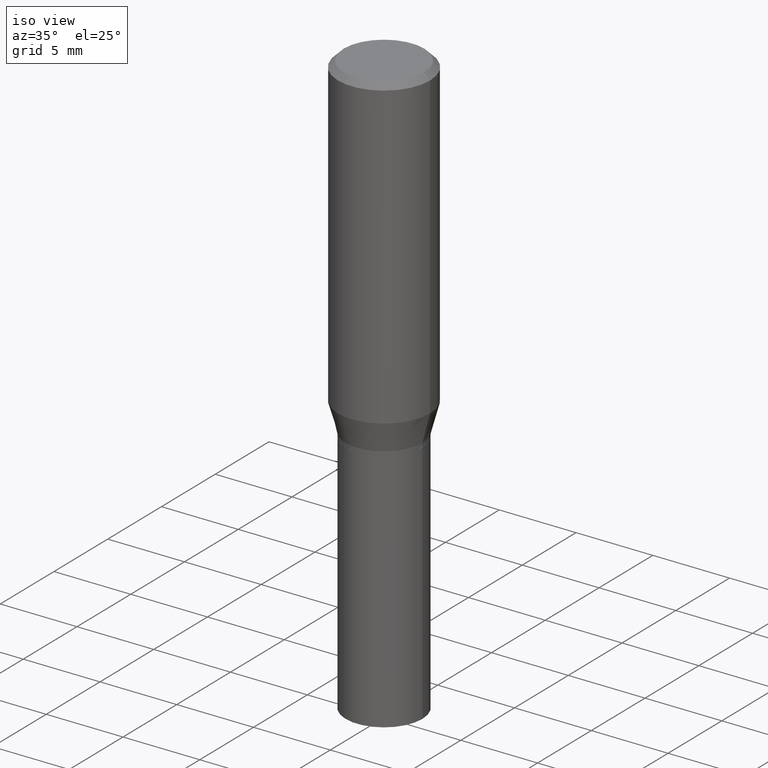
[diagram: clean part render]
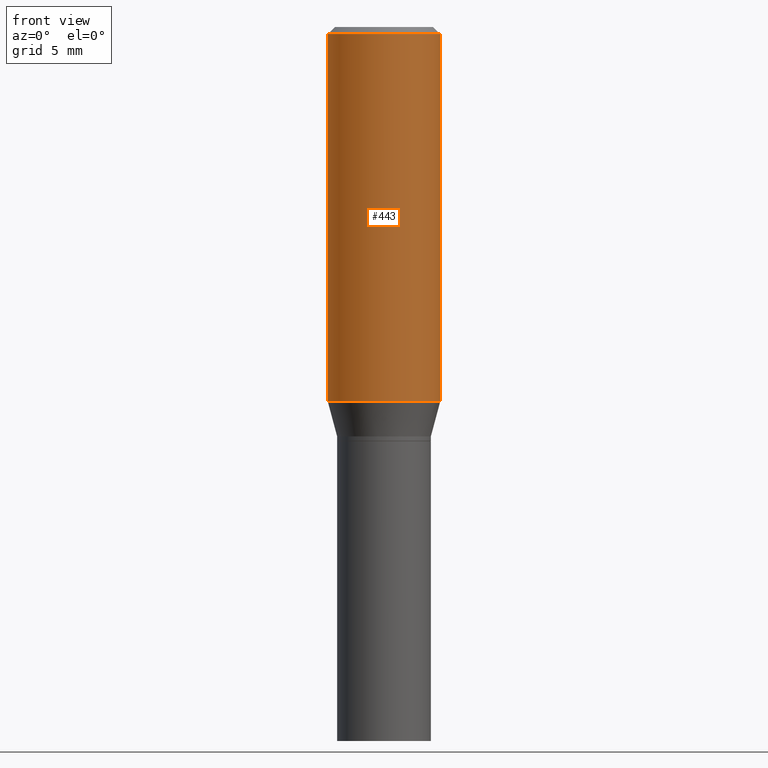
[diagram: tour spotlight — one face highlighted and labeled with its STEP entity id]
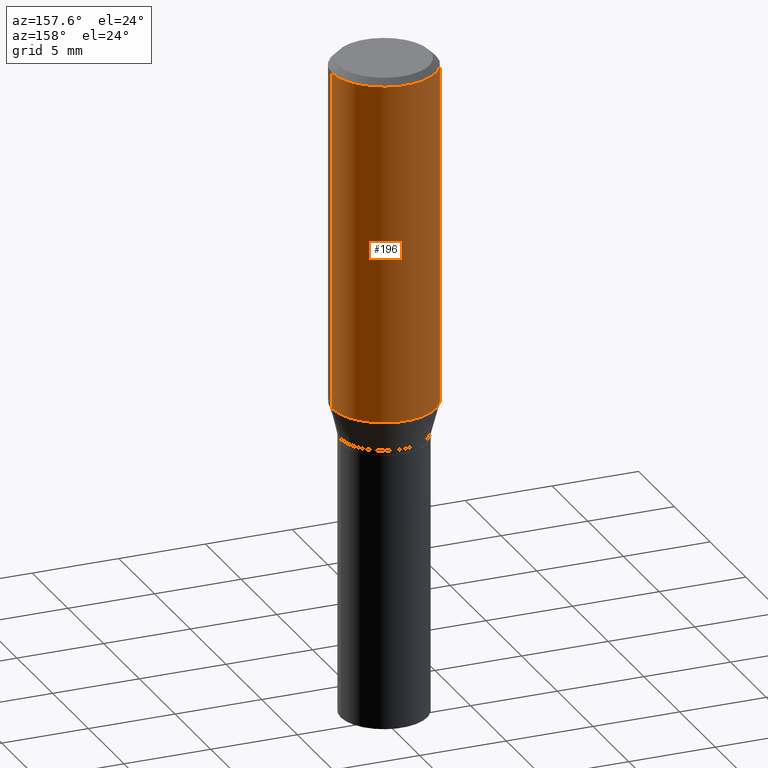
[diagram: tour spotlight — one face highlighted and labeled with its STEP entity id]
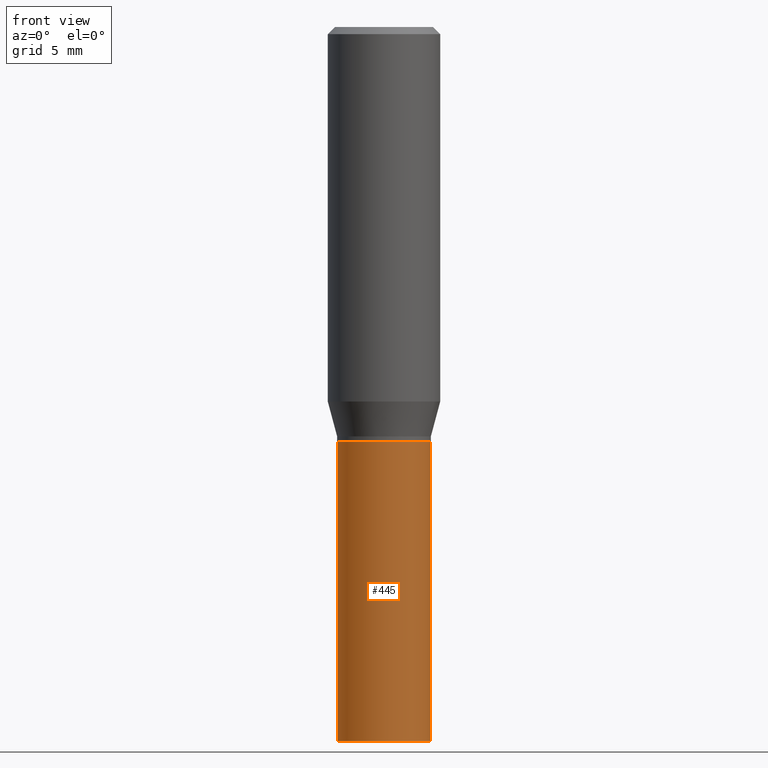
[diagram: tour spotlight — one face highlighted and labeled with its STEP entity id]
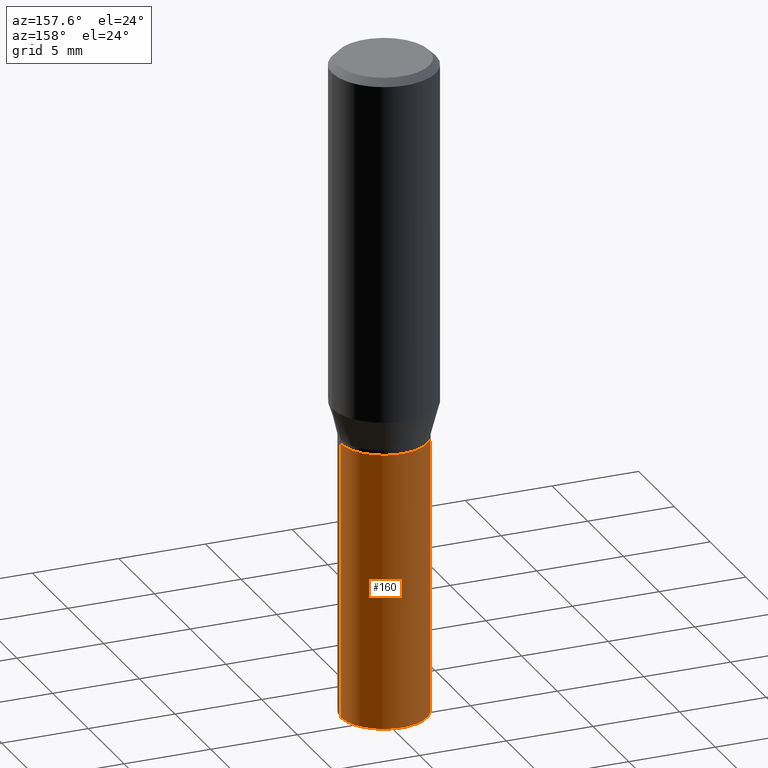
[diagram: tour spotlight — one face highlighted and labeled with its STEP entity id]
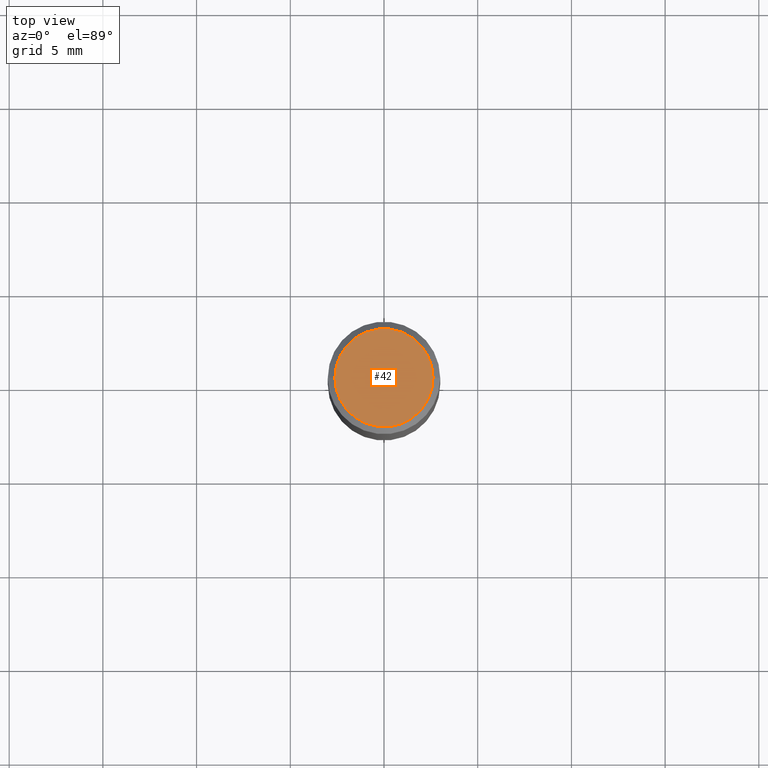
[diagram: tour spotlight — one face highlighted and labeled with its STEP entity id]
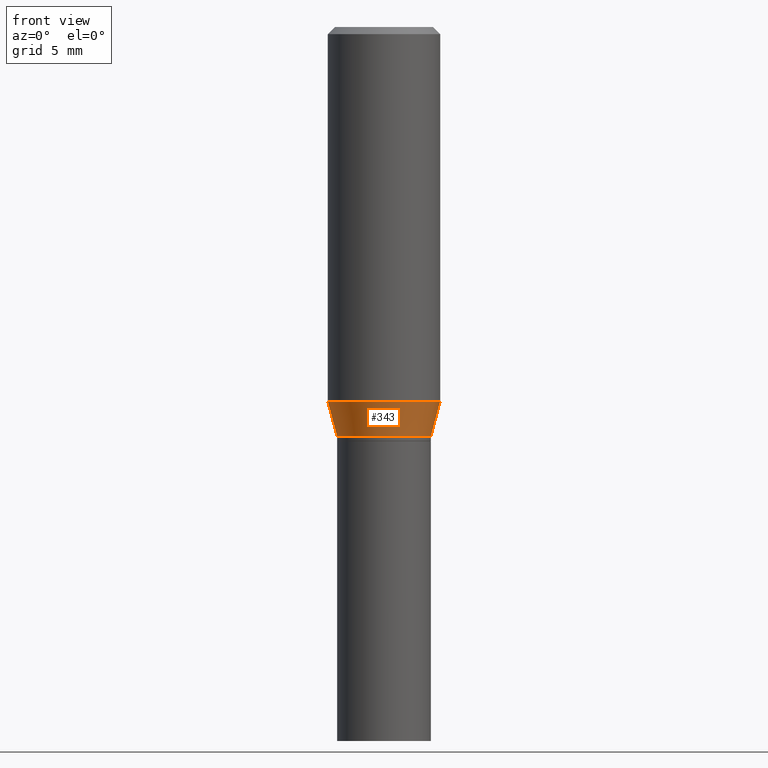
[diagram: tour spotlight — one face highlighted and labeled with its STEP entity id]
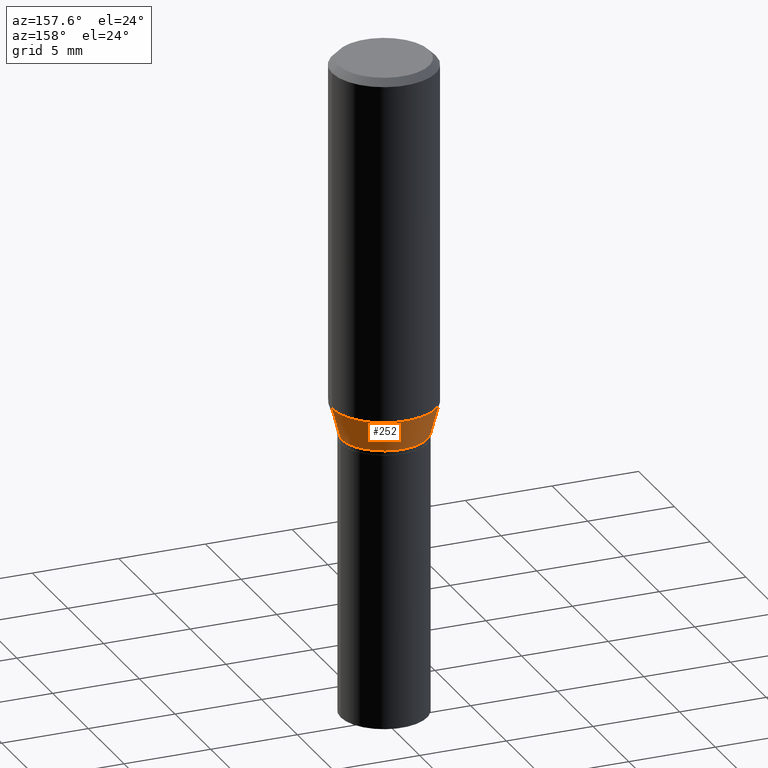
[diagram: tour spotlight — one face highlighted and labeled with its STEP entity id]
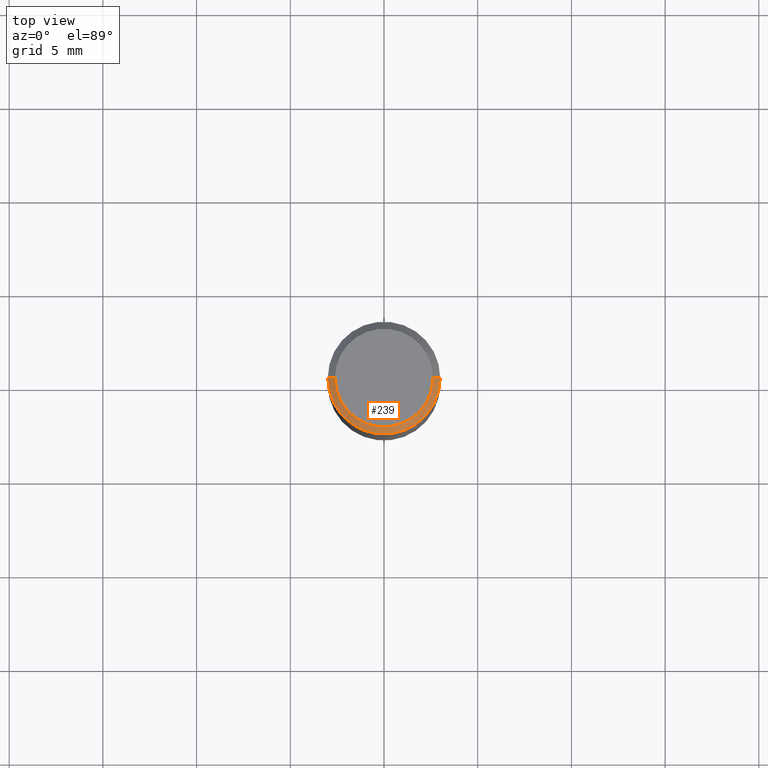
[diagram: tour spotlight — one face highlighted and labeled with its STEP entity id]
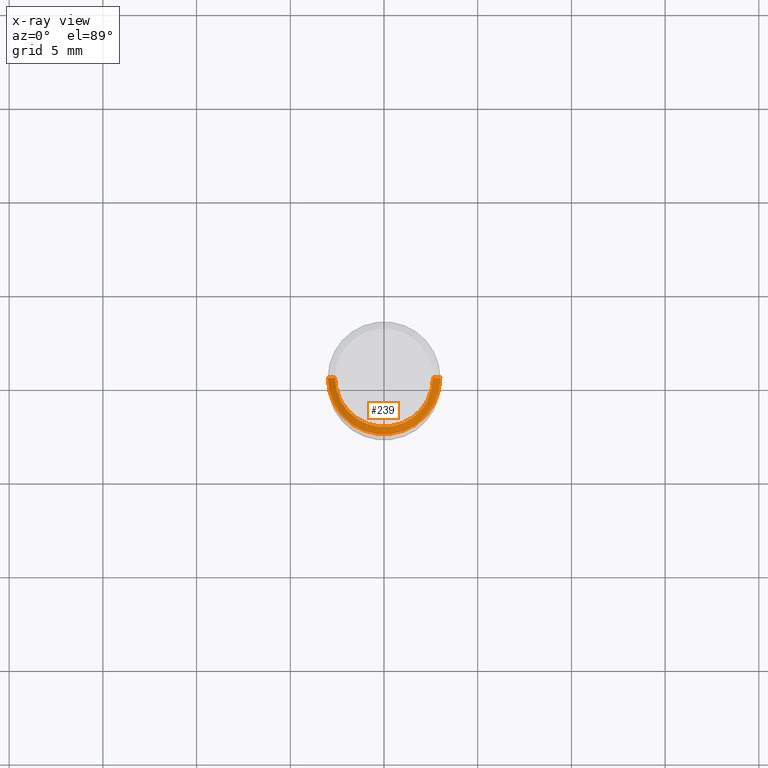
[diagram: x-ray of the same camera — body ghosted, this tour face saturated]
A machine part: a face-by-face anatomy tour. The part has 16 B-rep faces; the first image is the clean iso view, then the 8 largest visible faces are spotlighted one at a time (largest first), each with its STEP entity span.

Face 1 — front view, entity #443. In plain terms, the highlighted cylindrical surface (partial cylindrical patch) has radius 2.9997 mm, axis along (-0, 0, 1).
Definition (entity closure, byte-faithful):
#48 = DIRECTION ( 'NONE',  ( -2.445468806185136877E-29, 3.491481338843145188E-15, 1.000000000000000000 ) ) ;
#53 = EDGE_LOOP ( 'NONE', ( #107, #254, #296, #290 ) ) ;
#81 = CIRCLE ( 'NONE', #465, 0.1180999999999999966 ) ;
#89 = LINE ( 'NONE', #371, #230 ) ;
#99 = VERTEX_POINT ( 'NONE', #184 ) ;
#107 = ORIENTED_EDGE ( 'NONE', *, *, #435, .F. ) ;
#113 = DIRECTION ( 'NONE',  ( -2.445468806185136597E-29, 3.491481338843145583E-15, 1.000000000000000000 ) ) ;
#115 = VERTEX_POINT ( 'NONE', #266 ) ;
#124 = CARTESIAN_POINT ( 'NONE',  ( 0.1180999999999999966, -8.770601123173952432E-16, -0.01499999999999999944 ) ) ;
#131 = FACE_OUTER_BOUND ( 'NONE', #53, .T. ) ;
#171 = VECTOR ( 'NONE', #403, 39.37007874015748143 ) ;
#172 = CARTESIAN_POINT ( 'NONE',  ( 0.000000000000000000, 0.000000000000000000, 0.000000000000000000 ) ) ;
#175 = EDGE_CURVE ( 'NONE', #451, #425, #208, .T. ) ;
#184 = CARTESIAN_POINT ( 'NONE',  ( 0.1180999999999999966, -3.571663911781501372E-15, -0.7867652016312725038 ) ) ;
#193 = EDGE_CURVE ( 'NONE', #115, #99, #81, .T. ) ;
#208 = CIRCLE ( 'NONE', #395, 0.1180999999999999966 ) ;
#230 = VECTOR ( 'NONE', #48, 39.37007874015748143 ) ;
#243 = LINE ( 'NONE', #377, #171 ) ;
#254 = ORIENTED_EDGE ( 'NONE', *, *, #193, .T. ) ;
#255 = DIRECTION ( 'NONE',  ( 1.000000000000000000, -6.982962677686266711E-15, 0.000000000000000000 ) ) ;
#266 = CARTESIAN_POINT ( 'NONE',  ( -0.1180999999999999966, -1.907825048614074518E-15, -0.7867652016312725038 ) ) ;
#290 = ORIENTED_EDGE ( 'NONE', *, *, #175, .F. ) ;
#291 = DIRECTION ( 'NONE',  ( 1.000000000000000000, -6.982962677686266711E-15, 4.876176775795936353E-29 ) ) ;
#296 = ORIENTED_EDGE ( 'NONE', *, *, #439, .T. ) ;
#313 = CARTESIAN_POINT ( 'NONE',  ( -0.1180999999999999966, -5.605231488820216014E-16, -0.01499999999999999944 ) ) ;
#329 = DIRECTION ( 'NONE',  ( -2.445468806185136597E-29, 3.491481338843145583E-15, 1.000000000000000000 ) ) ;
#331 = DIRECTION ( 'NONE',  ( 1.000000000000000000, -6.982962677686269077E-15, 0.000000000000000000 ) ) ;
#339 = CYLINDRICAL_SURFACE ( 'NONE', #340, 0.1180999999999999966 ) ;
#340 = AXIS2_PLACEMENT_3D ( 'NONE', #172, #329, #291 ) ;
#353 = CARTESIAN_POINT ( 'NONE',  ( 3.668203209277705088E-31, -5.237222008264718399E-17, -0.01499999999999999944 ) ) ;
#371 = CARTESIAN_POINT ( 'NONE',  ( 0.1180999999999999966, -8.246878922347480654E-16, 5.758764772215000440E-30 ) ) ;
#377 = CARTESIAN_POINT ( 'NONE',  ( -0.1180999999999999966, 8.391509709326782957E-16, -5.809262341591043784E-30 ) ) ;
#395 = AXIS2_PLACEMENT_3D ( 'NONE', #353, #113, #255 ) ;
#403 = DIRECTION ( 'NONE',  ( -2.445468806185136877E-29, 3.491481338843145188E-15, 1.000000000000000000 ) ) ;
#425 = VERTEX_POINT ( 'NONE', #124 ) ;
#429 = DIRECTION ( 'NONE',  ( -2.445468806185136597E-29, 3.491481338843145583E-15, 1.000000000000000000 ) ) ;
#434 = CARTESIAN_POINT ( 'NONE',  ( 1.924009758381236534E-29, -2.746976019546752715E-15, -0.7867652016312725038 ) ) ;
#435 = EDGE_CURVE ( 'NONE', #115, #451, #243, .T. ) ;
#439 = EDGE_CURVE ( 'NONE', #99, #425, #89, .T. ) ;
#443 = ADVANCED_FACE ( 'NONE', ( #131 ), #339, .T. ) ;
#451 = VERTEX_POINT ( 'NONE', #313 ) ;
#465 = AXIS2_PLACEMENT_3D ( 'NONE', #434, #429, #331 ) ;

Face 2 — auxiliary view, entity #196. In plain terms, the highlighted cylindrical surface (partial cylindrical patch) has radius 2.9997 mm, axis along (-0, 0, 1).
Definition (entity closure, byte-faithful):
#11 = EDGE_CURVE ( 'NONE', #99, #115, #21, .T. ) ;
#18 = ORIENTED_EDGE ( 'NONE', *, *, #435, .T. ) ;
#21 = CIRCLE ( 'NONE', #330, 0.1180999999999999966 ) ;
#48 = DIRECTION ( 'NONE',  ( -2.445468806185136877E-29, 3.491481338843145188E-15, 1.000000000000000000 ) ) ;
#49 = ORIENTED_EDGE ( 'NONE', *, *, #11, .T. ) ;
#60 = DIRECTION ( 'NONE',  ( -2.445468806185136597E-29, 3.491481338843145583E-15, 1.000000000000000000 ) ) ;
#83 = DIRECTION ( 'NONE',  ( 1.000000000000000000, -6.982962677686266711E-15, 0.000000000000000000 ) ) ;
#88 = FACE_OUTER_BOUND ( 'NONE', #293, .T. ) ;
#89 = LINE ( 'NONE', #371, #230 ) ;
#97 = DIRECTION ( 'NONE',  ( 1.000000000000000000, -6.982962677686269077E-15, 0.000000000000000000 ) ) ;
#99 = VERTEX_POINT ( 'NONE', #184 ) ;
#115 = VERTEX_POINT ( 'NONE', #266 ) ;
#122 = AXIS2_PLACEMENT_3D ( 'NONE', #135, #262, #83 ) ;
#124 = CARTESIAN_POINT ( 'NONE',  ( 0.1180999999999999966, -8.770601123173952432E-16, -0.01499999999999999944 ) ) ;
#130 = DIRECTION ( 'NONE',  ( -2.445468806185136597E-29, 3.491481338843145583E-15, 1.000000000000000000 ) ) ;
#133 = DIRECTION ( 'NONE',  ( 1.000000000000000000, -6.982962677686266711E-15, 4.876176775795936353E-29 ) ) ;
#135 = CARTESIAN_POINT ( 'NONE',  ( 3.668203209277705088E-31, -5.237222008264718399E-17, -0.01499999999999999944 ) ) ;
#151 = CIRCLE ( 'NONE', #122, 0.1180999999999999966 ) ;
#171 = VECTOR ( 'NONE', #403, 39.37007874015748143 ) ;
#184 = CARTESIAN_POINT ( 'NONE',  ( 0.1180999999999999966, -3.571663911781501372E-15, -0.7867652016312725038 ) ) ;
#196 = ADVANCED_FACE ( 'NONE', ( #88 ), #304, .T. ) ;
#230 = VECTOR ( 'NONE', #48, 39.37007874015748143 ) ;
#243 = LINE ( 'NONE', #377, #171 ) ;
#248 = ORIENTED_EDGE ( 'NONE', *, *, #439, .F. ) ;
#258 = ORIENTED_EDGE ( 'NONE', *, *, #408, .F. ) ;
#262 = DIRECTION ( 'NONE',  ( -2.445468806185136597E-29, 3.491481338843145583E-15, 1.000000000000000000 ) ) ;
#266 = CARTESIAN_POINT ( 'NONE',  ( -0.1180999999999999966, -1.907825048614074518E-15, -0.7867652016312725038 ) ) ;
#293 = EDGE_LOOP ( 'NONE', ( #49, #18, #258, #248 ) ) ;
#304 = CYLINDRICAL_SURFACE ( 'NONE', #400, 0.1180999999999999966 ) ;
#313 = CARTESIAN_POINT ( 'NONE',  ( -0.1180999999999999966, -5.605231488820216014E-16, -0.01499999999999999944 ) ) ;
#330 = AXIS2_PLACEMENT_3D ( 'NONE', #416, #60, #97 ) ;
#371 = CARTESIAN_POINT ( 'NONE',  ( 0.1180999999999999966, -8.246878922347480654E-16, 5.758764772215000440E-30 ) ) ;
#377 = CARTESIAN_POINT ( 'NONE',  ( -0.1180999999999999966, 8.391509709326782957E-16, -5.809262341591043784E-30 ) ) ;
#400 = AXIS2_PLACEMENT_3D ( 'NONE', #409, #130, #133 ) ;
#403 = DIRECTION ( 'NONE',  ( -2.445468806185136877E-29, 3.491481338843145188E-15, 1.000000000000000000 ) ) ;
#408 = EDGE_CURVE ( 'NONE', #425, #451, #151, .T. ) ;
#409 = CARTESIAN_POINT ( 'NONE',  ( 0.000000000000000000, 0.000000000000000000, 0.000000000000000000 ) ) ;
#416 = CARTESIAN_POINT ( 'NONE',  ( 1.924009758381236534E-29, -2.746976019546752715E-15, -0.7867652016312725038 ) ) ;
#425 = VERTEX_POINT ( 'NONE', #124 ) ;
#435 = EDGE_CURVE ( 'NONE', #115, #451, #243, .T. ) ;
#439 = EDGE_CURVE ( 'NONE', #99, #425, #89, .T. ) ;
#451 = VERTEX_POINT ( 'NONE', #313 ) ;

Face 3 — front view, entity #445. In plain terms, the highlighted cylindrical surface (partial cylindrical patch) has radius 2.5006 mm, axis along (-0, 0, 1).
Definition (entity closure, byte-faithful):
#10 = DIRECTION ( 'NONE',  ( 1.000000000000000000, -6.982962677686265922E-15, 0.000000000000000000 ) ) ;
#13 = CARTESIAN_POINT ( 'NONE',  ( 0.09844999999999999585, -5.924694683882931526E-15, -1.500000000000000222 ) ) ;
#28 = ORIENTED_EDGE ( 'NONE', *, *, #162, .F. ) ;
#66 = CARTESIAN_POINT ( 'NONE',  ( 0.09844999999999999585, -3.725410588545634555E-15, -0.8701000000000000956 ) ) ;
#73 = AXIS2_PLACEMENT_3D ( 'NONE', #170, #411, #442 ) ;
#87 = DIRECTION ( 'NONE',  ( -2.445468806185136597E-29, 3.491481338843145583E-15, 1.000000000000000000 ) ) ;
#91 = AXIS2_PLACEMENT_3D ( 'NONE', #157, #87, #10 ) ;
#94 = EDGE_LOOP ( 'NONE', ( #308, #166, #241, #28 ) ) ;
#100 = VECTOR ( 'NONE', #440, 39.37007874015748143 ) ;
#108 = AXIS2_PLACEMENT_3D ( 'NONE', #453, #150, #176 ) ;
#148 = VERTEX_POINT ( 'NONE', #389 ) ;
#150 = DIRECTION ( 'NONE',  ( -2.445468806185136597E-29, 3.491481338843145583E-15, 1.000000000000000000 ) ) ;
#157 = CARTESIAN_POINT ( 'NONE',  ( 2.127802408261687534E-29, -3.037937912927421601E-15, -0.8701000000000000956 ) ) ;
#162 = EDGE_CURVE ( 'NONE', #244, #378, #405, .T. ) ;
#166 = ORIENTED_EDGE ( 'NONE', *, *, #276, .T. ) ;
#167 = CARTESIAN_POINT ( 'NONE',  ( -0.09844999999999999585, -3.438050637240251581E-15, -0.8701000000000000956 ) ) ;
#170 = CARTESIAN_POINT ( 'NONE',  ( 3.668203209277704895E-29, -5.237222008264718177E-15, -1.500000000000000222 ) ) ;
#176 = DIRECTION ( 'NONE',  ( 1.000000000000000000, -6.982962677686266711E-15, 4.876176775795936353E-29 ) ) ;
#178 = VECTOR ( 'NONE', #357, 39.37007874015748143 ) ;
#190 = EDGE_CURVE ( 'NONE', #268, #378, #464, .T. ) ;
#222 = CIRCLE ( 'NONE', #73, 0.09844999999999999585 ) ;
#223 = CARTESIAN_POINT ( 'NONE',  ( 0.09844999999999999585, -6.874726756182129545E-16, 4.800596035771099214E-30 ) ) ;
#241 = ORIENTED_EDGE ( 'NONE', *, *, #190, .T. ) ;
#244 = VERTEX_POINT ( 'NONE', #167 ) ;
#260 = EDGE_CURVE ( 'NONE', #148, #244, #335, .T. ) ;
#268 = VERTEX_POINT ( 'NONE', #13 ) ;
#276 = EDGE_CURVE ( 'NONE', #148, #268, #222, .T. ) ;
#307 = CARTESIAN_POINT ( 'NONE',  ( -0.09844999999999999585, 6.995293233558186035E-16, -4.842691596355954042E-30 ) ) ;
#308 = ORIENTED_EDGE ( 'NONE', *, *, #260, .F. ) ;
#335 = LINE ( 'NONE', #307, #100 ) ;
#341 = FACE_OUTER_BOUND ( 'NONE', #94, .T. ) ;
#357 = DIRECTION ( 'NONE',  ( -2.445468806185136877E-29, 3.491481338843145188E-15, 1.000000000000000000 ) ) ;
#378 = VERTEX_POINT ( 'NONE', #66 ) ;
#389 = CARTESIAN_POINT ( 'NONE',  ( -0.09844999999999999585, -3.438050637240251581E-15, -1.500000000000000222 ) ) ;
#405 = CIRCLE ( 'NONE', #91, 0.09844999999999999585 ) ;
#411 = DIRECTION ( 'NONE',  ( -2.445468806185136597E-29, 3.491481338843145583E-15, 1.000000000000000000 ) ) ;
#421 = CYLINDRICAL_SURFACE ( 'NONE', #108, 0.09844999999999999585 ) ;
#440 = DIRECTION ( 'NONE',  ( -2.445468806185136877E-29, 3.491481338843145188E-15, 1.000000000000000000 ) ) ;
#442 = DIRECTION ( 'NONE',  ( 1.000000000000000000, -6.982962677686265922E-15, 0.000000000000000000 ) ) ;
#445 = ADVANCED_FACE ( 'NONE', ( #341 ), #421, .T. ) ;
#453 = CARTESIAN_POINT ( 'NONE',  ( 0.000000000000000000, 0.000000000000000000, 0.000000000000000000 ) ) ;
#464 = LINE ( 'NONE', #223, #178 ) ;

Face 4 — auxiliary view, entity #160. In plain terms, the highlighted cylindrical surface (partial cylindrical patch) has radius 2.5006 mm, axis along (-0, 0, 1).
Definition (entity closure, byte-faithful):
#13 = CARTESIAN_POINT ( 'NONE',  ( 0.09844999999999999585, -5.924694683882931526E-15, -1.500000000000000222 ) ) ;
#34 = DIRECTION ( 'NONE',  ( 1.000000000000000000, -6.982962677686266711E-15, 4.876176775795936353E-29 ) ) ;
#43 = DIRECTION ( 'NONE',  ( 1.000000000000000000, -6.982962677686265922E-15, 0.000000000000000000 ) ) ;
#56 = AXIS2_PLACEMENT_3D ( 'NONE', #380, #132, #311 ) ;
#66 = CARTESIAN_POINT ( 'NONE',  ( 0.09844999999999999585, -3.725410588545634555E-15, -0.8701000000000000956 ) ) ;
#68 = ORIENTED_EDGE ( 'NONE', *, *, #190, .F. ) ;
#70 = EDGE_LOOP ( 'NONE', ( #438, #141, #349, #68 ) ) ;
#100 = VECTOR ( 'NONE', #440, 39.37007874015748143 ) ;
#112 = CARTESIAN_POINT ( 'NONE',  ( 0.000000000000000000, 0.000000000000000000, 0.000000000000000000 ) ) ;
#132 = DIRECTION ( 'NONE',  ( -2.445468806185136597E-29, 3.491481338843145583E-15, 1.000000000000000000 ) ) ;
#141 = ORIENTED_EDGE ( 'NONE', *, *, #260, .T. ) ;
#148 = VERTEX_POINT ( 'NONE', #389 ) ;
#160 = ADVANCED_FACE ( 'NONE', ( #460 ), #297, .T. ) ;
#163 = CIRCLE ( 'NONE', #271, 0.09844999999999999585 ) ;
#167 = CARTESIAN_POINT ( 'NONE',  ( -0.09844999999999999585, -3.438050637240251581E-15, -0.8701000000000000956 ) ) ;
#178 = VECTOR ( 'NONE', #357, 39.37007874015748143 ) ;
#190 = EDGE_CURVE ( 'NONE', #268, #378, #464, .T. ) ;
#223 = CARTESIAN_POINT ( 'NONE',  ( 0.09844999999999999585, -6.874726756182129545E-16, 4.800596035771099214E-30 ) ) ;
#224 = EDGE_CURVE ( 'NONE', #268, #148, #163, .T. ) ;
#231 = CARTESIAN_POINT ( 'NONE',  ( 3.668203209277704895E-29, -5.237222008264718177E-15, -1.500000000000000222 ) ) ;
#232 = EDGE_CURVE ( 'NONE', #378, #244, #414, .T. ) ;
#244 = VERTEX_POINT ( 'NONE', #167 ) ;
#260 = EDGE_CURVE ( 'NONE', #148, #244, #335, .T. ) ;
#268 = VERTEX_POINT ( 'NONE', #13 ) ;
#271 = AXIS2_PLACEMENT_3D ( 'NONE', #231, #363, #43 ) ;
#280 = AXIS2_PLACEMENT_3D ( 'NONE', #112, #391, #34 ) ;
#297 = CYLINDRICAL_SURFACE ( 'NONE', #280, 0.09844999999999999585 ) ;
#307 = CARTESIAN_POINT ( 'NONE',  ( -0.09844999999999999585, 6.995293233558186035E-16, -4.842691596355954042E-30 ) ) ;
#311 = DIRECTION ( 'NONE',  ( 1.000000000000000000, -6.982962677686265922E-15, 0.000000000000000000 ) ) ;
#335 = LINE ( 'NONE', #307, #100 ) ;
#349 = ORIENTED_EDGE ( 'NONE', *, *, #232, .F. ) ;
#357 = DIRECTION ( 'NONE',  ( -2.445468806185136877E-29, 3.491481338843145188E-15, 1.000000000000000000 ) ) ;
#363 = DIRECTION ( 'NONE',  ( -2.445468806185136597E-29, 3.491481338843145583E-15, 1.000000000000000000 ) ) ;
#378 = VERTEX_POINT ( 'NONE', #66 ) ;
#380 = CARTESIAN_POINT ( 'NONE',  ( 2.127802408261687534E-29, -3.037937912927421601E-15, -0.8701000000000000956 ) ) ;
#389 = CARTESIAN_POINT ( 'NONE',  ( -0.09844999999999999585, -3.438050637240251581E-15, -1.500000000000000222 ) ) ;
#391 = DIRECTION ( 'NONE',  ( -2.445468806185136597E-29, 3.491481338843145583E-15, 1.000000000000000000 ) ) ;
#414 = CIRCLE ( 'NONE', #56, 0.09844999999999999585 ) ;
#438 = ORIENTED_EDGE ( 'NONE', *, *, #224, .T. ) ;
#440 = DIRECTION ( 'NONE',  ( -2.445468806185136877E-29, 3.491481338843145188E-15, 1.000000000000000000 ) ) ;
#460 = FACE_OUTER_BOUND ( 'NONE', #70, .T. ) ;
#464 = LINE ( 'NONE', #223, #178 ) ;

Face 5 — top view, entity #42. In plain terms, the highlighted planar face has unit normal (0, -0, -1).
Definition (entity closure, byte-faithful):
#3 = DIRECTION ( 'NONE',  ( -2.445468806185136597E-29, 3.491481338843145583E-15, 1.000000000000000000 ) ) ;
#26 = EDGE_LOOP ( 'NONE', ( #179, #144 ) ) ;
#39 = CIRCLE ( 'NONE', #117, 0.1031000000000000111 ) ;
#42 = ADVANCED_FACE ( 'NONE', ( #142 ), #136, .F. ) ;
#77 = CARTESIAN_POINT ( 'NONE',  ( -0.1031000000000000111, 7.461295621107772493E-16, -1.900413116462341961E-16 ) ) ;
#98 = VERTEX_POINT ( 'NONE', #149 ) ;
#103 = DIRECTION ( 'NONE',  ( 2.438088387897960049E-29, -3.491481338843145188E-15, -1.000000000000000000 ) ) ;
#114 = EDGE_CURVE ( 'NONE', #147, #98, #39, .T. ) ;
#117 = AXIS2_PLACEMENT_3D ( 'NONE', #152, #3, #437 ) ;
#136 = PLANE ( 'NONE',  #191 ) ;
#142 = FACE_OUTER_BOUND ( 'NONE', #26, .T. ) ;
#144 = ORIENTED_EDGE ( 'NONE', *, *, #426, .T. ) ;
#147 = VERTEX_POINT ( 'NONE', #77 ) ;
#149 = CARTESIAN_POINT ( 'NONE',  ( 0.1031000000000000111, -7.849571885948552706E-16, -1.900413116462238423E-16 ) ) ;
#152 = CARTESIAN_POINT ( 'NONE',  ( 4.647400995173613138E-45, -6.635256932220833331E-31, -1.900413116462290932E-16 ) ) ;
#179 = ORIENTED_EDGE ( 'NONE', *, *, #114, .T. ) ;
#191 = AXIS2_PLACEMENT_3D ( 'NONE', #285, #103, #247 ) ;
#192 = DIRECTION ( 'NONE',  ( 1.000000000000000000, -6.982962677686265922E-15, 4.883331232093008327E-29 ) ) ;
#238 = AXIS2_PLACEMENT_3D ( 'NONE', #366, #410, #192 ) ;
#247 = DIRECTION ( 'NONE',  ( -1.000000000000000000, 6.982962677686265922E-15, -4.876176775795935793E-29 ) ) ;
#285 = CARTESIAN_POINT ( 'NONE',  ( 7.199434520694541042E-16, 0.1031000000000000111, -4.549923818578428559E-16 ) ) ;
#366 = CARTESIAN_POINT ( 'NONE',  ( 4.647400995173613138E-45, -6.635256932220833331E-31, -1.900413116462290932E-16 ) ) ;
#410 = DIRECTION ( 'NONE',  ( -2.445468806185136597E-29, 3.491481338843145583E-15, 1.000000000000000000 ) ) ;
#424 = CIRCLE ( 'NONE', #238, 0.1031000000000000111 ) ;
#426 = EDGE_CURVE ( 'NONE', #98, #147, #424, .T. ) ;
#437 = DIRECTION ( 'NONE',  ( 1.000000000000000000, -6.982962677686265922E-15, 4.883331232093008327E-29 ) ) ;

Face 6 — front view, entity #343. In plain terms, the highlighted conical surface has half-angle 15 deg.
Definition (entity closure, byte-faithful):
#5 = DIRECTION ( 'NONE',  ( -0.2588190451025215166, 5.211531920934551042E-15, 0.9659258262890679791 ) ) ;
#24 = EDGE_CURVE ( 'NONE', #336, #99, #52, .T. ) ;
#41 = DIRECTION ( 'NONE',  ( -2.445468806185136597E-29, 3.491481338843145583E-15, 1.000000000000000000 ) ) ;
#45 = VECTOR ( 'NONE', #177, 39.37007874015748143 ) ;
#51 = EDGE_LOOP ( 'NONE', ( #253, #104, #449, #197 ) ) ;
#52 = LINE ( 'NONE', #342, #45 ) ;
#65 = VECTOR ( 'NONE', #5, 39.37007874015748143 ) ;
#81 = CIRCLE ( 'NONE', #465, 0.1180999999999999966 ) ;
#82 = AXIS2_PLACEMENT_3D ( 'NONE', #450, #446, #146 ) ;
#99 = VERTEX_POINT ( 'NONE', #184 ) ;
#104 = ORIENTED_EDGE ( 'NONE', *, *, #169, .T. ) ;
#115 = VERTEX_POINT ( 'NONE', #266 ) ;
#119 = EDGE_CURVE ( 'NONE', #386, #115, #369, .T. ) ;
#146 = DIRECTION ( 'NONE',  ( 1.000000000000000000, -6.982962677686267499E-15, 0.000000000000000000 ) ) ;
#165 = CARTESIAN_POINT ( 'NONE',  ( 2.103347720199836269E-29, -3.003023099538989951E-15, -0.8601000000000000867 ) ) ;
#169 = EDGE_CURVE ( 'NONE', #386, #336, #455, .T. ) ;
#177 = DIRECTION ( 'NONE',  ( 0.2588190451025215166, 1.565188264969620784E-15, 0.9659258262890679791 ) ) ;
#184 = CARTESIAN_POINT ( 'NONE',  ( 0.1180999999999999966, -3.571663911781501372E-15, -0.7867652016312725038 ) ) ;
#193 = EDGE_CURVE ( 'NONE', #115, #99, #81, .T. ) ;
#197 = ORIENTED_EDGE ( 'NONE', *, *, #193, .F. ) ;
#221 = CARTESIAN_POINT ( 'NONE',  ( 0.09845000000000017626, -3.690495775157203695E-15, -0.8601000000000000867 ) ) ;
#240 = CARTESIAN_POINT ( 'NONE',  ( -0.09845000000000017626, -2.303493776183169474E-15, -0.8601000000000000867 ) ) ;
#253 = ORIENTED_EDGE ( 'NONE', *, *, #119, .F. ) ;
#266 = CARTESIAN_POINT ( 'NONE',  ( -0.1180999999999999966, -1.907825048614074518E-15, -0.7867652016312725038 ) ) ;
#302 = DIRECTION ( 'NONE',  ( 1.000000000000000000, -6.982962677686267499E-15, 0.000000000000000000 ) ) ;
#309 = AXIS2_PLACEMENT_3D ( 'NONE', #165, #41, #302 ) ;
#331 = DIRECTION ( 'NONE',  ( 1.000000000000000000, -6.982962677686269077E-15, 0.000000000000000000 ) ) ;
#336 = VERTEX_POINT ( 'NONE', #221 ) ;
#342 = CARTESIAN_POINT ( 'NONE',  ( 0.09845000000000017626, -3.690495775157203695E-15, -0.8601000000000000867 ) ) ;
#343 = ADVANCED_FACE ( 'NONE', ( #448 ), #432, .T. ) ;
#347 = CARTESIAN_POINT ( 'NONE',  ( -0.09845000000000017626, -2.105659412398621996E-15, -0.8601000000000000867 ) ) ;
#369 = LINE ( 'NONE', #240, #65 ) ;
#386 = VERTEX_POINT ( 'NONE', #347 ) ;
#429 = DIRECTION ( 'NONE',  ( -2.445468806185136597E-29, 3.491481338843145583E-15, 1.000000000000000000 ) ) ;
#432 = CONICAL_SURFACE ( 'NONE', #82, 0.09845000000000017626, 0.2617993877991502405 ) ;
#434 = CARTESIAN_POINT ( 'NONE',  ( 1.924009758381236534E-29, -2.746976019546752715E-15, -0.7867652016312725038 ) ) ;
#446 = DIRECTION ( 'NONE',  ( -2.445468806185136597E-29, 3.491481338843145583E-15, 1.000000000000000000 ) ) ;
#448 = FACE_OUTER_BOUND ( 'NONE', #51, .T. ) ;
#449 = ORIENTED_EDGE ( 'NONE', *, *, #24, .T. ) ;
#450 = CARTESIAN_POINT ( 'NONE',  ( 2.103347720199836269E-29, -3.003023099538989951E-15, -0.8601000000000000867 ) ) ;
#455 = CIRCLE ( 'NONE', #309, 0.09845000000000017626 ) ;
#465 = AXIS2_PLACEMENT_3D ( 'NONE', #434, #429, #331 ) ;

Face 7 — auxiliary view, entity #252. In plain terms, the highlighted conical surface has half-angle 15 deg.
Definition (entity closure, byte-faithful):
#5 = DIRECTION ( 'NONE',  ( -0.2588190451025215166, 5.211531920934551042E-15, 0.9659258262890679791 ) ) ;
#6 = AXIS2_PLACEMENT_3D ( 'NONE', #269, #305, #273 ) ;
#11 = EDGE_CURVE ( 'NONE', #99, #115, #21, .T. ) ;
#21 = CIRCLE ( 'NONE', #330, 0.1180999999999999966 ) ;
#24 = EDGE_CURVE ( 'NONE', #336, #99, #52, .T. ) ;
#45 = VECTOR ( 'NONE', #177, 39.37007874015748143 ) ;
#52 = LINE ( 'NONE', #342, #45 ) ;
#60 = DIRECTION ( 'NONE',  ( -2.445468806185136597E-29, 3.491481338843145583E-15, 1.000000000000000000 ) ) ;
#65 = VECTOR ( 'NONE', #5, 39.37007874015748143 ) ;
#71 = DIRECTION ( 'NONE',  ( 1.000000000000000000, -6.982962677686267499E-15, 0.000000000000000000 ) ) ;
#97 = DIRECTION ( 'NONE',  ( 1.000000000000000000, -6.982962677686269077E-15, 0.000000000000000000 ) ) ;
#99 = VERTEX_POINT ( 'NONE', #184 ) ;
#115 = VERTEX_POINT ( 'NONE', #266 ) ;
#119 = EDGE_CURVE ( 'NONE', #386, #115, #369, .T. ) ;
#153 = DIRECTION ( 'NONE',  ( -2.445468806185136597E-29, 3.491481338843145583E-15, 1.000000000000000000 ) ) ;
#154 = EDGE_CURVE ( 'NONE', #336, #386, #299, .T. ) ;
#177 = DIRECTION ( 'NONE',  ( 0.2588190451025215166, 1.565188264969620784E-15, 0.9659258262890679791 ) ) ;
#184 = CARTESIAN_POINT ( 'NONE',  ( 0.1180999999999999966, -3.571663911781501372E-15, -0.7867652016312725038 ) ) ;
#186 = CONICAL_SURFACE ( 'NONE', #6, 0.09845000000000017626, 0.2617993877991502405 ) ;
#194 = ORIENTED_EDGE ( 'NONE', *, *, #119, .T. ) ;
#221 = CARTESIAN_POINT ( 'NONE',  ( 0.09845000000000017626, -3.690495775157203695E-15, -0.8601000000000000867 ) ) ;
#240 = CARTESIAN_POINT ( 'NONE',  ( -0.09845000000000017626, -2.303493776183169474E-15, -0.8601000000000000867 ) ) ;
#245 = FACE_OUTER_BOUND ( 'NONE', #379, .T. ) ;
#252 = ADVANCED_FACE ( 'NONE', ( #245 ), #186, .T. ) ;
#266 = CARTESIAN_POINT ( 'NONE',  ( -0.1180999999999999966, -1.907825048614074518E-15, -0.7867652016312725038 ) ) ;
#269 = CARTESIAN_POINT ( 'NONE',  ( 2.103347720199836269E-29, -3.003023099538989951E-15, -0.8601000000000000867 ) ) ;
#273 = DIRECTION ( 'NONE',  ( 1.000000000000000000, -6.982962677686267499E-15, 0.000000000000000000 ) ) ;
#277 = ORIENTED_EDGE ( 'NONE', *, *, #24, .F. ) ;
#299 = CIRCLE ( 'NONE', #441, 0.09845000000000017626 ) ;
#305 = DIRECTION ( 'NONE',  ( -2.445468806185136597E-29, 3.491481338843145583E-15, 1.000000000000000000 ) ) ;
#306 = ORIENTED_EDGE ( 'NONE', *, *, #154, .T. ) ;
#330 = AXIS2_PLACEMENT_3D ( 'NONE', #416, #60, #97 ) ;
#336 = VERTEX_POINT ( 'NONE', #221 ) ;
#342 = CARTESIAN_POINT ( 'NONE',  ( 0.09845000000000017626, -3.690495775157203695E-15, -0.8601000000000000867 ) ) ;
#347 = CARTESIAN_POINT ( 'NONE',  ( -0.09845000000000017626, -2.105659412398621996E-15, -0.8601000000000000867 ) ) ;
#360 = CARTESIAN_POINT ( 'NONE',  ( 2.103347720199836269E-29, -3.003023099538989951E-15, -0.8601000000000000867 ) ) ;
#369 = LINE ( 'NONE', #240, #65 ) ;
#379 = EDGE_LOOP ( 'NONE', ( #306, #194, #420, #277 ) ) ;
#386 = VERTEX_POINT ( 'NONE', #347 ) ;
#416 = CARTESIAN_POINT ( 'NONE',  ( 1.924009758381236534E-29, -2.746976019546752715E-15, -0.7867652016312725038 ) ) ;
#420 = ORIENTED_EDGE ( 'NONE', *, *, #11, .F. ) ;
#441 = AXIS2_PLACEMENT_3D ( 'NONE', #360, #153, #71 ) ;

Face 8 — top view, entity #239. An x-ray twin of the same camera follows (body ghosted, this face saturated) — the face is partly hidden behind the body. In plain terms, the highlighted conical surface has half-angle 45 deg.
Definition (entity closure, byte-faithful):
#3 = DIRECTION ( 'NONE',  ( -2.445468806185136597E-29, 3.491481338843145583E-15, 1.000000000000000000 ) ) ;
#14 = VECTOR ( 'NONE', #452, 39.37007874015748854 ) ;
#39 = CIRCLE ( 'NONE', #117, 0.1031000000000000111 ) ;
#50 = DIRECTION ( 'NONE',  ( -1.000000000000000000, 6.982962677686266711E-15, 0.000000000000000000 ) ) ;
#59 = LINE ( 'NONE', #288, #282 ) ;
#64 = EDGE_LOOP ( 'NONE', ( #344, #459, #181, #286 ) ) ;
#77 = CARTESIAN_POINT ( 'NONE',  ( -0.1031000000000000111, 7.461295621107772493E-16, -1.900413116462341961E-16 ) ) ;
#92 = EDGE_CURVE ( 'NONE', #147, #451, #431, .T. ) ;
#98 = VERTEX_POINT ( 'NONE', #149 ) ;
#113 = DIRECTION ( 'NONE',  ( -2.445468806185136597E-29, 3.491481338843145583E-15, 1.000000000000000000 ) ) ;
#114 = EDGE_CURVE ( 'NONE', #147, #98, #39, .T. ) ;
#117 = AXIS2_PLACEMENT_3D ( 'NONE', #152, #3, #437 ) ;
#124 = CARTESIAN_POINT ( 'NONE',  ( 0.1180999999999999966, -8.770601123173952432E-16, -0.01499999999999999944 ) ) ;
#138 = FACE_OUTER_BOUND ( 'NONE', #64, .T. ) ;
#147 = VERTEX_POINT ( 'NONE', #77 ) ;
#149 = CARTESIAN_POINT ( 'NONE',  ( 0.1031000000000000111, -7.849571885948552706E-16, -1.900413116462238423E-16 ) ) ;
#152 = CARTESIAN_POINT ( 'NONE',  ( 4.647400995173613138E-45, -6.635256932220833331E-31, -1.900413116462290932E-16 ) ) ;
#175 = EDGE_CURVE ( 'NONE', #451, #425, #208, .T. ) ;
#181 = ORIENTED_EDGE ( 'NONE', *, *, #92, .T. ) ;
#208 = CIRCLE ( 'NONE', #395, 0.1180999999999999966 ) ;
#239 = ADVANCED_FACE ( 'NONE', ( #138 ), #361, .T. ) ;
#255 = DIRECTION ( 'NONE',  ( 1.000000000000000000, -6.982962677686266711E-15, 0.000000000000000000 ) ) ;
#281 = CARTESIAN_POINT ( 'NONE',  ( 3.668203209277705088E-31, -5.237222008264718399E-17, -0.01499999999999999944 ) ) ;
#282 = VECTOR ( 'NONE', #418, 39.37007874015748854 ) ;
#286 = ORIENTED_EDGE ( 'NONE', *, *, #175, .T. ) ;
#288 = CARTESIAN_POINT ( 'NONE',  ( 0.1180999999999999966, -8.625970336194650129E-16, -0.01499999999999999944 ) ) ;
#313 = CARTESIAN_POINT ( 'NONE',  ( -0.1180999999999999966, -5.605231488820216014E-16, -0.01499999999999999944 ) ) ;
#321 = CARTESIAN_POINT ( 'NONE',  ( -0.1180999999999999966, 7.723156721521009862E-16, -0.01499999999999999944 ) ) ;
#344 = ORIENTED_EDGE ( 'NONE', *, *, #354, .F. ) ;
#353 = CARTESIAN_POINT ( 'NONE',  ( 3.668203209277705088E-31, -5.237222008264718399E-17, -0.01499999999999999944 ) ) ;
#354 = EDGE_CURVE ( 'NONE', #98, #425, #59, .T. ) ;
#361 = CONICAL_SURFACE ( 'NONE', #382, 0.1180999999999999966, 0.7853981633974543852 ) ;
#367 = DIRECTION ( 'NONE',  ( 2.445468806185136597E-29, -3.491481338843145583E-15, -1.000000000000000000 ) ) ;
#382 = AXIS2_PLACEMENT_3D ( 'NONE', #281, #367, #50 ) ;
#395 = AXIS2_PLACEMENT_3D ( 'NONE', #353, #113, #255 ) ;
#418 = DIRECTION ( 'NONE',  ( 0.7071067811865516806, -7.319954787623268667E-15, -0.7071067811865431318 ) ) ;
#425 = VERTEX_POINT ( 'NONE', #124 ) ;
#431 = LINE ( 'NONE', #321, #14 ) ;
#437 = DIRECTION ( 'NONE',  ( 1.000000000000000000, -6.982962677686265922E-15, 4.883331232093008327E-29 ) ) ;
#451 = VERTEX_POINT ( 'NONE', #313 ) ;
#452 = DIRECTION ( 'NONE',  ( -0.7071067811865516806, 2.468850131082300842E-15, -0.7071067811865431318 ) ) ;
#459 = ORIENTED_EDGE ( 'NONE', *, *, #114, .F. ) ;